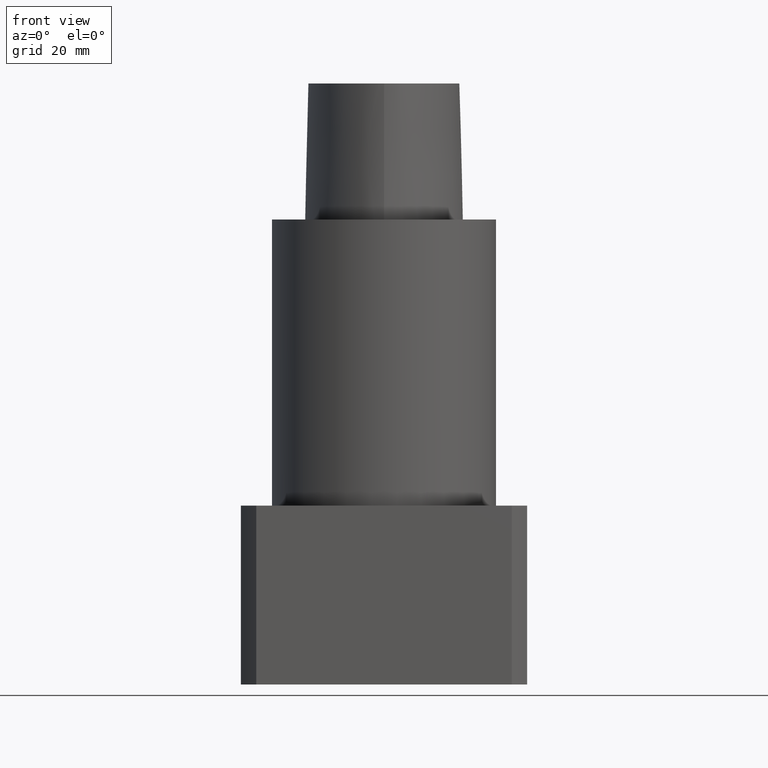
[diagram: clean part render]
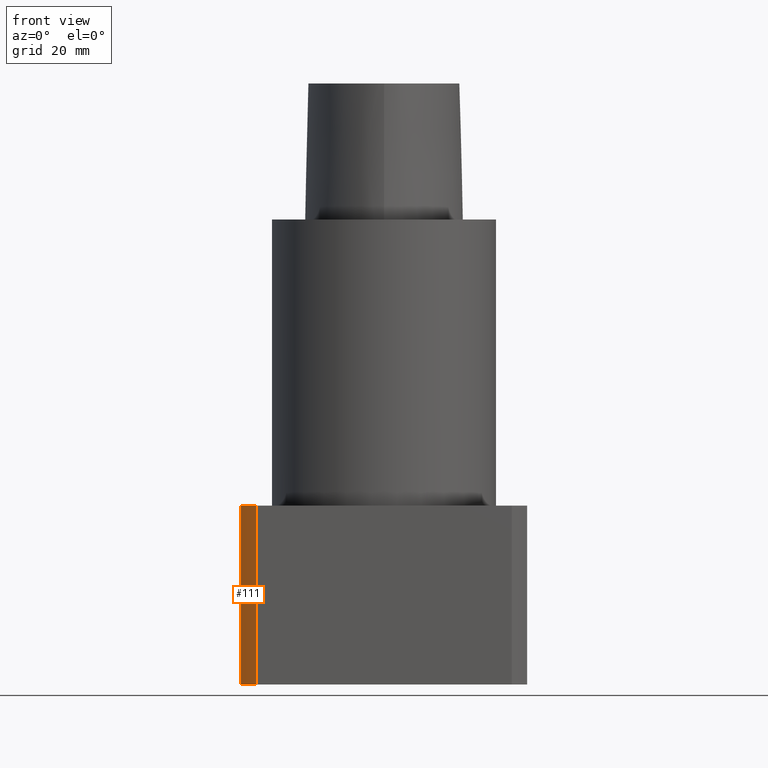
[diagram: same view with one face highlighted and labeled with its STEP entity id]
A machine part, front view. The second image highlights one B-rep face of the part: STEP entity #111.
In plain terms, the highlighted cylindrical surface (partial cylindrical patch) has radius 50 mm, axis along (0, 0, -1).
Its self-contained STEP definition (entity closure, byte-faithful):
#111=ADVANCED_FACE('240[2]',(#279),#280,.T.);
#125=EDGE_CURVE('240[2]',#301,#282,#302,.T.);
#168=EDGE_CURVE('240[2]',#354,#304,#361,.T.);
#211=EDGE_CURVE('240[2]',#301,#304,#411,.T.);
#218=EDGE_CURVE('240[2]',#282,#354,#419,.T.);
#279=FACE_OUTER_BOUND('',#573,.T.);
#280=CYLINDRICAL_SURFACE('',#574,50.0);
#282=VERTEX_POINT('',#577);
#301=VERTEX_POINT('',#607);
#302=LINE('',#608,#609);
#304=VERTEX_POINT('',#612);
#354=VERTEX_POINT('',#764);
#361=LINE('',#774,#775);
#411=CIRCLE('',#885,50.0);
#419=CIRCLE('',#896,50.0);
#573=EDGE_LOOP('',(#946,#947,#948,#949));
#574=AXIS2_PLACEMENT_3D('',#950,#951,#952);
#577=CARTESIAN_POINT('',(-40.0000000008907,-30.0000000015427,-80.0));
#607=CARTESIAN_POINT('',(-40.0000000008908,-30.0000000015427,-130.0));
#608=CARTESIAN_POINT('',(-40.0000000008908,-30.0000000015427,-130.0));
#609=VECTOR('',#961,50.0);
#612=CARTESIAN_POINT('',(-35.707142143605,-35.0000000015427,-130.0));
#764=CARTESIAN_POINT('',(-35.707142143605,-35.0000000015427,-80.0));
#774=CARTESIAN_POINT('',(-35.707142143605,-35.0000000015427,-80.0));
#775=VECTOR('',#1030,50.0);
#885=AXIS2_PLACEMENT_3D('',#1080,#1081,#1082);
#896=AXIS2_PLACEMENT_3D('',#1096,#1097,#1098);
#946=ORIENTED_EDGE('',*,*,#168,.F.);
#947=ORIENTED_EDGE('',*,*,#218,.F.);
#948=ORIENTED_EDGE('',*,*,#125,.F.);
#949=ORIENTED_EDGE('',*,*,#211,.T.);
#950=CARTESIAN_POINT('',(-8.907932E-010,-1.542596E-009,-105.0));
#951=DIRECTION('',(0.0,0.0,-1.0));
#952=DIRECTION('',(0.0,-1.0,0.0));
#961=DIRECTION('',(0.0,0.0,1.0));
#1030=DIRECTION('',(0.0,0.0,-1.0));
#1080=CARTESIAN_POINT('',(-8.908074E-010,-1.542604E-009,-130.0));
#1081=DIRECTION('',(0.0,0.0,1.0));
#1082=DIRECTION('',(0.0,-1.0,0.0));
#1096=CARTESIAN_POINT('',(-8.907932E-010,-1.542589E-009,-80.0));
#1097=DIRECTION('',(0.0,0.0,1.0));
#1098=DIRECTION('',(0.0,-1.0,0.0));